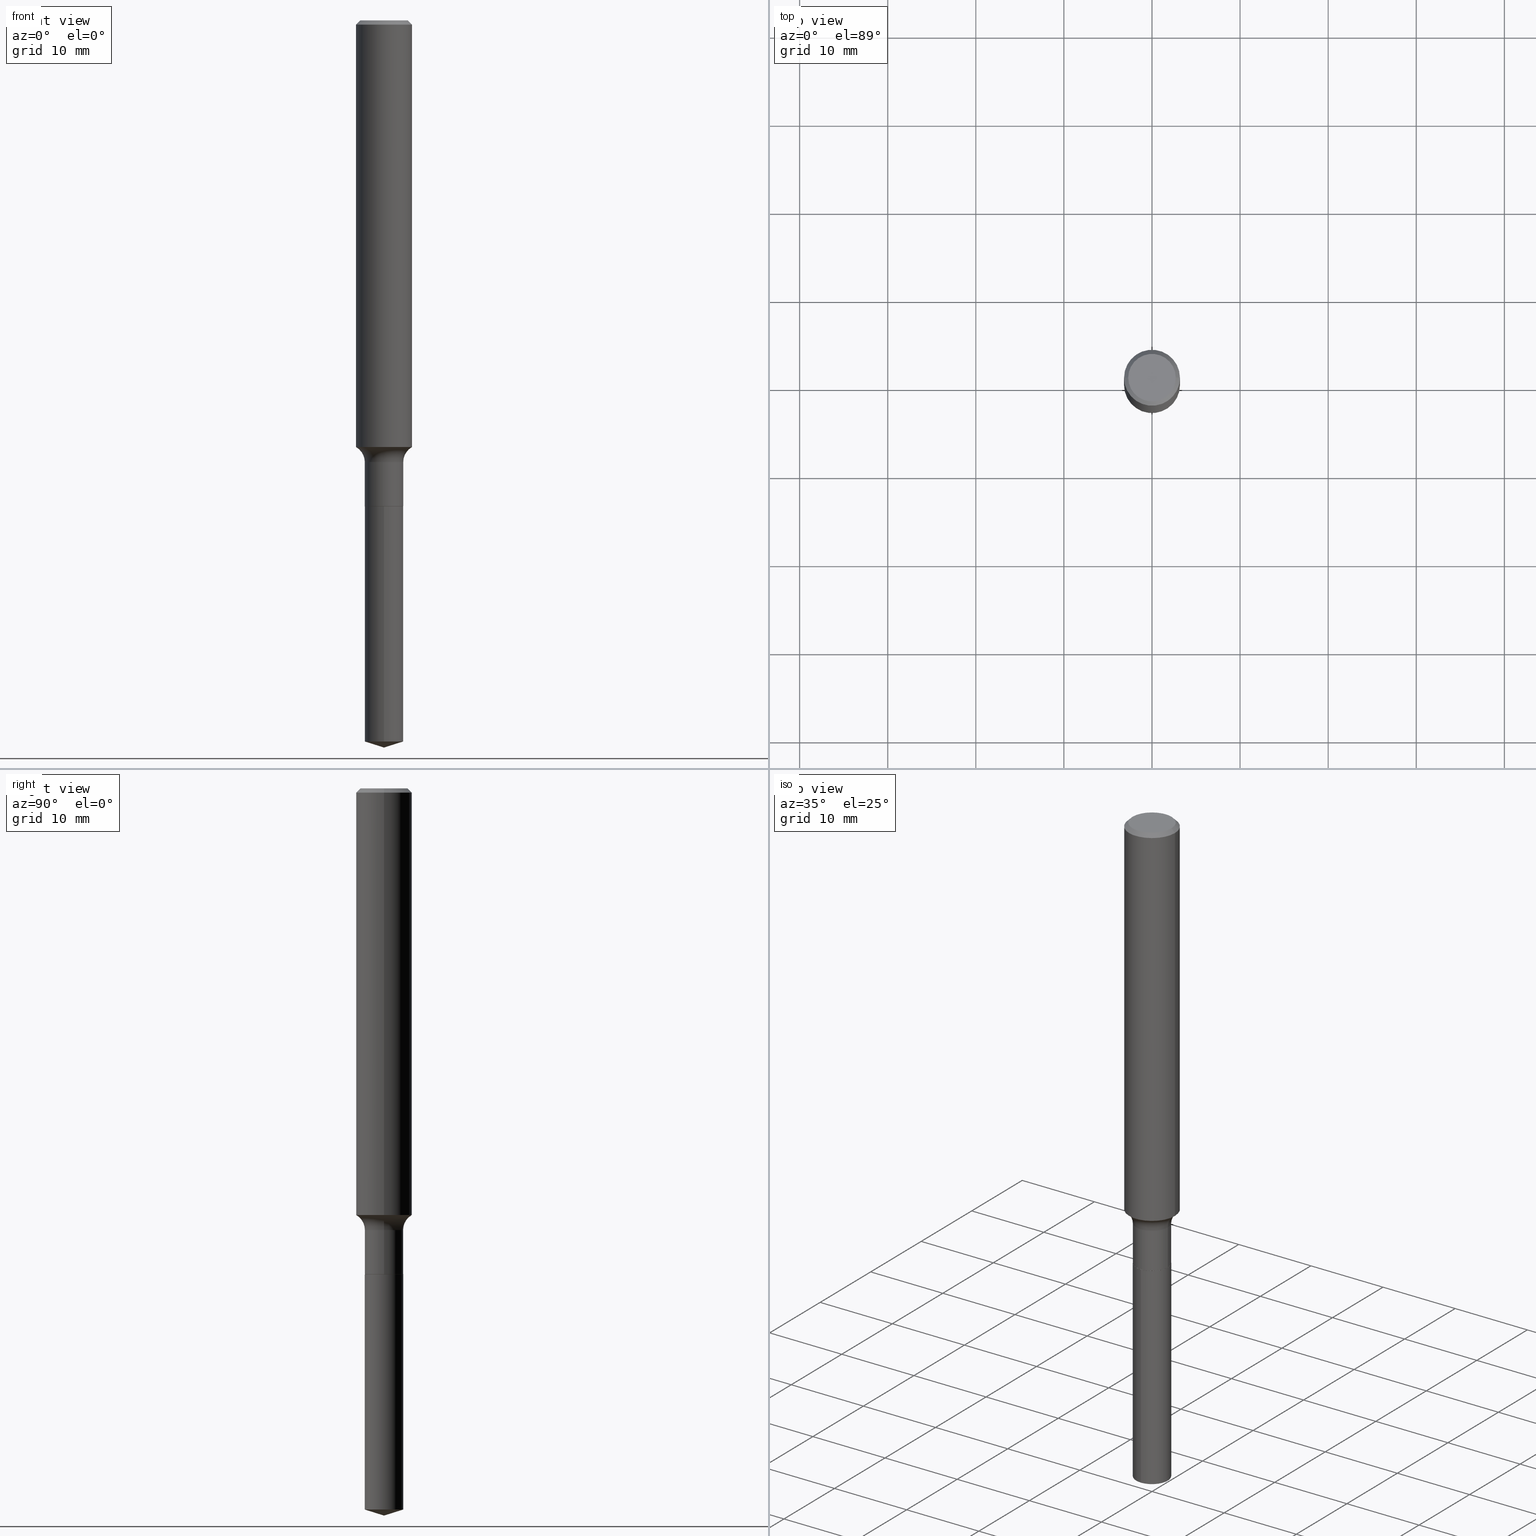
[diagram: canonical four-view strip — front | top / right | iso, engineering-drawing reading convention]
A machine part, canonical four-view strip (front | top / right | iso — engineering-drawing reading convention). The complete STEP part file that produces these views, byte-faithful:
ISO-10303-21;
HEADER;
FILE_DESCRIPTION (( 'STEP AP203' ),
    '1' );
FILE_NAME ('51588.STEP',
    '2024-04-19T13:04:25',
    ( '' ),
    ( '' ),
    'SwSTEP 2.0',
    'SolidWorks 2023',
    '' );
FILE_SCHEMA (( 'CONFIG_CONTROL_DESIGN' ));
ENDSEC;

DATA;
#1 = ORIENTED_EDGE ( 'NONE', *, *, #270, .F. ) ;
#2 = APPROVAL_ROLE ( '' ) ;
#3 = VERTEX_POINT ( 'NONE', #417 ) ;
#4 = EDGE_CURVE ( 'NONE', #64, #483, #346, .T. ) ;
#5 = PERSON_AND_ORGANIZATION ( #153, #143 ) ;
#6 = DIRECTION ( 'NONE',  ( -1.000000000000000000, 6.982962677686265922E-15, -4.876176775795935793E-29 ) ) ;
#7 = APPROVAL_ROLE ( '' ) ;
#8 = CARTESIAN_POINT ( 'NONE',  ( 5.311313700153497401E-29, -7.583148319833427758E-15, -2.171899999999999942 ) ) ;
#9 = COORDINATED_UNIVERSAL_TIME_OFFSET ( 5, 0, .BEHIND. ) ;
#10 = CARTESIAN_POINT ( 'NONE',  ( 0.1250000000000001388, -8.728703347107843249E-16, 6.095220969744926748E-30 ) ) ;
#11 = CC_DESIGN_PERSON_AND_ORGANIZATION_ASSIGNMENT ( #418, #311, ( #396 ) ) ;
#12 = CARTESIAN_POINT ( 'NONE',  ( 0.08595000000000001250, -8.181588221311139692E-15, -2.171399999999999775 ) ) ;
#13 = DIRECTION ( 'NONE',  ( -2.445468806185136597E-29, 3.491481338843145583E-15, 1.000000000000000000 ) ) ;
#14 = AXIS2_PLACEMENT_3D ( 'NONE', #348, #205, #425 ) ;
#15 =( GEOMETRIC_REPRESENTATION_CONTEXT ( 3 ) GLOBAL_UNCERTAINTY_ASSIGNED_CONTEXT ( ( #113 ) ) GLOBAL_UNIT_ASSIGNED_CONTEXT ( ( #229, #302, #81 ) ) REPRESENTATION_CONTEXT ( 'NONE', 'WORKASPACE' ) );
#16 = DIRECTION ( 'NONE',  ( -2.445468806185136597E-29, 3.491481338843145583E-15, 1.000000000000000000 ) ) ;
#17 = FACE_OUTER_BOUND ( 'NONE', #361, .T. ) ;
#18 = ORIENTED_EDGE ( 'NONE', *, *, #273, .T. ) ;
#19 = DIRECTION ( 'NONE',  ( 1.000000000000000000, -6.982962677686270655E-15, 0.000000000000000000 ) ) ;
#20 = EDGE_LOOP ( 'NONE', ( #338, #232, #370, #146 ) ) ;
#21 = AXIS2_PLACEMENT_3D ( 'NONE', #355, #357, #350 ) ;
#22 = LOCAL_TIME ( 9, 4, 25.00000000000000000, #67 ) ;
#23 = FACE_OUTER_BOUND ( 'NONE', #299, .T. ) ;
#24 = ORIENTED_EDGE ( 'NONE', *, *, #234, .F. ) ;
#25 = EDGE_CURVE ( 'NONE', #410, #254, #310, .T. ) ;
#26 = DIRECTION ( 'NONE',  ( 1.000000000000000000, -6.982962677686266711E-15, 0.000000000000000000 ) ) ;
#27 = ORIENTED_EDGE ( 'NONE', *, *, #303, .F. ) ;
#28 = DIRECTION ( 'NONE',  ( -2.445468806185136597E-29, 3.491481338843145583E-15, 1.000000000000000000 ) ) ;
#29 = ORIENTED_EDGE ( 'NONE', *, *, #25, .F. ) ;
#30 = VECTOR ( 'NONE', #111, 39.37007874015748143 ) ;
#31 = AXIS2_PLACEMENT_3D ( 'NONE', #100, #246, #362 ) ;
#32 = VECTOR ( 'NONE', #190, 39.37007874015748143 ) ;
#33 = CARTESIAN_POINT ( 'NONE',  ( -6.001856421470813725E-16, -0.08595000000000757590, -2.171899999999999498 ) ) ;
#34 = EDGE_CURVE ( 'NONE', #95, #3, #189, .T. ) ;
#35 = CARTESIAN_POINT ( 'NONE',  ( 6.107114813858590523E-16, 0.08594999999999240747, -2.171899999999999942 ) ) ;
#36 = ORIENTED_EDGE ( 'NONE', *, *, #270, .T. ) ;
#37 = EDGE_LOOP ( 'NONE', ( #24, #212 ) ) ;
#38 = SECURITY_CLASSIFICATION ( '', '', #384 ) ;
#39 = PERSON_AND_ORGANIZATION_ROLE ( 'design_supplier' ) ;
#40 = VERTEX_POINT ( 'NONE', #74 ) ;
#41 = APPROVAL_STATUS ( 'not_yet_approved' ) ;
#42 = DIRECTION ( 'NONE',  ( 2.438088387897960049E-29, -3.491481338843145188E-15, -1.000000000000000000 ) ) ;
#43 = CARTESIAN_POINT ( 'NONE',  ( -0.08544999999999998430, -6.973340324952309186E-15, -2.171899999999999498 ) ) ;
#44 = CALENDAR_DATE ( 2024, 19, 4 ) ;
#45 = AXIS2_PLACEMENT_3D ( 'NONE', #58, #471, #128 ) ;
#46 = DIRECTION ( 'NONE',  ( 1.000000000000000000, -6.982962677686267499E-15, 4.883557194083112340E-29 ) ) ;
#47 = EDGE_CURVE ( 'NONE', #254, #415, #446, .T. ) ;
#48 = DIRECTION ( 'NONE',  ( -1.000000000000000000, 6.982962677686266711E-15, 0.000000000000000000 ) ) ;
#49 = CARTESIAN_POINT ( 'NONE',  ( 4.585254011597165626E-31, -6.546527510330947764E-17, -0.01875000000000014155 ) ) ;
#50 = ADVANCED_FACE ( 'NONE', ( #105 ), #69, .T. ) ;
#51 = FACE_OUTER_BOUND ( 'NONE', #308, .T. ) ;
#52 = CONICAL_SURFACE ( 'NONE', #193, 0.08544999999999998430, 0.7853981633978409649 ) ;
#53 = AXIS2_PLACEMENT_3D ( 'NONE', #231, #68, #147 ) ;
#54 = VERTEX_POINT ( 'NONE', #33 ) ;
#55 = FACE_OUTER_BOUND ( 'NONE', #20, .T. ) ;
#56 = EDGE_CURVE ( 'NONE', #3, #415, #175, .T. ) ;
#57 = EDGE_LOOP ( 'NONE', ( #252, #103 ) ) ;
#58 = CARTESIAN_POINT ( 'NONE',  ( 5.311313700153497401E-29, -7.583148319833427758E-15, -2.171899999999999942 ) ) ;
#59 = EDGE_LOOP ( 'NONE', ( #481, #218, #434, #265 ) ) ;
#60 = DIRECTION ( 'NONE',  ( 1.000000000000000000, -6.982962677686270655E-15, 0.000000000000000000 ) ) ;
#61 = EDGE_LOOP ( 'NONE', ( #340, #196, #250, #154 ) ) ;
#62 = CIRCLE ( 'NONE', #21, 0.08544999999999998430 ) ;
#63 = DIRECTION ( 'NONE',  ( 1.000000000000000000, -6.982962677686266711E-15, 4.877714189860772023E-29 ) ) ;
#64 = VERTEX_POINT ( 'NONE', #281 ) ;
#65 = CARTESIAN_POINT ( 'NONE',  ( 5.311313700153497401E-29, -7.583148319833427758E-15, -2.171899999999999942 ) ) ;
#66 = CARTESIAN_POINT ( 'NONE',  ( -0.08595000000000001250, 6.107114813858061986E-16, -4.227824710074092290E-30 ) ) ;
#67 = COORDINATED_UNIVERSAL_TIME_OFFSET ( 5, 0, .BEHIND. ) ;
#68 = DIRECTION ( 'NONE',  ( -2.438088387897960049E-29, 3.491481338843145188E-15, 1.000000000000000000 ) ) ;
#69 = CYLINDRICAL_SURFACE ( 'NONE', #476, 0.08595000000000001250 ) ;
#70 = ADVANCED_FACE ( 'NONE', ( #427 ), #201, .F. ) ;
#71 = CIRCLE ( 'NONE', #210, 0.1062499999999999972 ) ;
#72 = AXIS2_PLACEMENT_3D ( 'NONE', #470, #126, #285 ) ;
#73 = CARTESIAN_POINT ( 'NONE',  ( -0.1250000000000003331, -5.768753835338669634E-15, -1.906621175653907319 ) ) ;
#74 = CARTESIAN_POINT ( 'NONE',  ( -6.001856421470559317E-16, -0.08595000000001129514, -3.222900069095851805 ) ) ;
#75 = CC_DESIGN_PERSON_AND_ORGANIZATION_ASSIGNMENT ( #5, #85, ( #295 ) ) ;
#76 = CARTESIAN_POINT ( 'NONE',  ( 6.107114813858851833E-16, 0.08594999999998877149, -3.222900069095853137 ) ) ;
#77 = ORIENTED_EDGE ( 'NONE', *, *, #4, .F. ) ;
#78 = LINE ( 'NONE', #184, #32 ) ;
#79 = ORIENTED_EDGE ( 'NONE', *, *, #460, .F. ) ;
#80 = AXIS2_PLACEMENT_3D ( 'NONE', #360, #180, #439 ) ;
#81 =( NAMED_UNIT ( * ) SI_UNIT ( $, .STERADIAN. ) SOLID_ANGLE_UNIT ( ) );
#82 = CARTESIAN_POINT ( 'NONE',  ( 0.1250000000000000000, -9.383356098140928781E-16, -0.01875000000000014155 ) ) ;
#83 = DATE_AND_TIME ( #456, #421 ) ;
#84 = CARTESIAN_POINT ( 'NONE',  ( 5.310090965750405721E-29, -7.581402579164005466E-15, -2.171399999999999775 ) ) ;
#85 = PERSON_AND_ORGANIZATION_ROLE ( 'creator' ) ;
#86 = DIRECTION ( 'NONE',  ( -2.445468806185136597E-29, 3.491481338843145583E-15, 1.000000000000000000 ) ) ;
#87 = CALENDAR_DATE ( 2024, 19, 4 ) ;
#88 = AXIS2_PLACEMENT_3D ( 'NONE', #381, #42, #6 ) ;
#89 = CARTESIAN_POINT ( 'NONE',  ( 0.1250000000000003331, -7.529802589749582149E-15, -1.906621175653907319 ) ) ;
#90 = DATE_TIME_ROLE ( 'classification_date' ) ;
#91 = DIRECTION ( 'NONE',  ( 0.7071067811865454633, -7.319954787623248157E-15, -0.7071067811865495711 ) ) ;
#92 = CARTESIAN_POINT ( 'NONE',  ( -8.832623085328410100E-28, 1.261187315385179839E-13, 36.12007874015748143 ) ) ;
#93 = CARTESIAN_POINT ( 'NONE',  ( 5.311313700153497401E-29, -7.583148319833426180E-15, -2.171899999999999498 ) ) ;
#94 = AXIS2_PLACEMENT_3D ( 'NONE', #389, #235, #48 ) ;
#95 = VERTEX_POINT ( 'NONE', #161 ) ;
#96 = CARTESIAN_POINT ( 'NONE',  ( 0.000000000000000000, 0.000000000000000000, 0.000000000000000000 ) ) ;
#97 = ORIENTED_EDGE ( 'NONE', *, *, #378, .T. ) ;
#98 = CARTESIAN_POINT ( 'NONE',  ( -0.1250000000000000000, -2.473020345370925196E-15, -0.01875000000000014155 ) ) ;
#99 = VERTEX_POINT ( 'NONE', #89 ) ;
#100 = CARTESIAN_POINT ( 'NONE',  ( 7.881383700020633069E-29, -1.125286426538225716E-14, -3.222900069095852249 ) ) ;
#101 = ORIENTED_EDGE ( 'NONE', *, *, #234, .T. ) ;
#102 = CARTESIAN_POINT ( 'NONE',  ( 0.08594999999999998475, -7.493068101291271863E-15, -1.974199999999999955 ) ) ;
#103 = ORIENTED_EDGE ( 'NONE', *, *, #366, .T. ) ;
#104 = FACE_OUTER_BOUND ( 'NONE', #339, .T. ) ;
#105 = FACE_OUTER_BOUND ( 'NONE', #59, .T. ) ;
#106 = CC_DESIGN_PERSON_AND_ORGANIZATION_ASSIGNMENT ( #424, #278, ( #393 ) ) ;
#107 = DIRECTION ( 'NONE',  ( 1.000000000000000000, -6.982962677686259611E-15, 0.000000000000000000 ) ) ;
#108 = CARTESIAN_POINT ( 'NONE',  ( 0.000000000000000000, 0.000000000000000000, 0.000000000000000000 ) ) ;
#109 = AXIS2_PLACEMENT_3D ( 'NONE', #96, #253, #365 ) ;
#110 =( LENGTH_UNIT ( ) NAMED_UNIT ( * ) SI_UNIT ( $, .METRE. ) );
#111 = DIRECTION ( 'NONE',  ( -2.445468806185136877E-29, 3.491481338843145188E-15, 1.000000000000000000 ) ) ;
#112 = FACE_OUTER_BOUND ( 'NONE', #214, .T. ) ;
#113 = UNCERTAINTY_MEASURE_WITH_UNIT (LENGTH_MEASURE( 1.000000000000000082E-05 ), #229, 'distance_accuracy_value', 'NONE');
#114 = EDGE_LOOP ( 'NONE', ( #133, #442, #380, #181 ) ) ;
#115 = CARTESIAN_POINT ( 'NONE',  ( -0.1250000000000001388, 8.881784197001262184E-16, -6.148668862818638533E-30 ) ) ;
#116 = AXIS2_PLACEMENT_3D ( 'NONE', #257, #404, #289 ) ;
#117 = LINE ( 'NONE', #199, #379 ) ;
#118 = DIRECTION ( 'NONE',  ( 0.000000000000000000, 0.000000000000000000, 1.000000000000000000 ) ) ;
#119 = PLANE ( 'NONE',  #88 ) ;
#120 = APPROVAL_DATE_TIME ( #354, #220 ) ;
#121 = LINE ( 'NONE', #165, #202 ) ;
#122 = APPROVAL_DATE_TIME ( #315, #200 ) ;
#123 = VECTOR ( 'NONE', #274, 39.37007874015748143 ) ;
#124 = FACE_OUTER_BOUND ( 'NONE', #343, .T. ) ;
#125 = CONICAL_SURFACE ( 'NONE', #387, 0.08544999999999998430, 0.7853981633978409649 ) ;
#126 = DIRECTION ( 'NONE',  ( -2.445468806185136597E-29, 3.491481338843145583E-15, 1.000000000000000000 ) ) ;
#127 = CC_DESIGN_DATE_AND_TIME_ASSIGNMENT ( #83, #280, ( #295 ) ) ;
#128 = DIRECTION ( 'NONE',  ( -6.982962677686266711E-15, -1.000000000000000000, 3.178415350394722068E-15 ) ) ;
#129 = PRODUCT_DEFINITION_SHAPE ( 'NONE', 'NONE',  #295 ) ;
#130 = DIRECTION ( 'NONE',  ( -2.445468806185136597E-29, 3.491481338843145583E-15, 1.000000000000000000 ) ) ;
#131 = AXIS2_PLACEMENT_3D ( 'NONE', #390, #207, #209 ) ;
#132 = APPROVAL_PERSON_ORGANIZATION ( #198, #200, #7 ) ;
#133 = ORIENTED_EDGE ( 'NONE', *, *, #286, .F. ) ;
#134 = CYLINDRICAL_SURFACE ( 'NONE', #116, 0.08595000000000001250 ) ;
#135 = ORIENTED_EDGE ( 'NONE', *, *, #342, .F. ) ;
#136 = EDGE_CURVE ( 'NONE', #272, #405, #386, .T. ) ;
#137 = CYLINDRICAL_SURFACE ( 'NONE', #109, 0.1250000000000001388 ) ;
#138 = ORIENTED_EDGE ( 'NONE', *, *, #255, .F. ) ;
#139 = APPROVAL_DATE_TIME ( #469, #479 ) ;
#140 = CARTESIAN_POINT ( 'NONE',  ( 4.827844517170696296E-29, -6.892882459144138426E-15, -1.974199999999999955 ) ) ;
#141 = ORIENTED_EDGE ( 'NONE', *, *, #228, .T. ) ;
#142 = AXIS2_PLACEMENT_3D ( 'NONE', #217, #16, #19 ) ;
#143 = ORGANIZATION ( 'UNSPECIFIED', 'UNSPECIFIED', '' ) ;
#144 = ADVANCED_FACE ( 'NONE', ( #124 ), #351, .T. ) ;
#145 = EDGE_CURVE ( 'NONE', #179, #95, #322, .T. ) ;
#146 = ORIENTED_EDGE ( 'NONE', *, *, #444, .F. ) ;
#147 = DIRECTION ( 'NONE',  ( 1.000000000000000000, -6.982962677686265922E-15, 4.876176775795935793E-29 ) ) ;
#148 = ORIENTED_EDGE ( 'NONE', *, *, #303, .T. ) ;
#149 = ADVANCED_FACE ( 'NONE', ( #462 ), #248, .T. ) ;
#150 = ORIENTED_EDGE ( 'NONE', *, *, #383, .T. ) ;
#151 = CIRCLE ( 'NONE', #166, 0.08594999999999998475 ) ;
#152 = CC_DESIGN_APPROVAL ( #479, ( #38 ) ) ;
#153 = PERSON ( 'UNSPECIFIED', 'UNSPECIFIED', 'UNSPECIFIED', ('UNSPECIFIED'), ('UNSPECIFIED'), ('UNSPECIFIED') ) ;
#154 = ORIENTED_EDGE ( 'NONE', *, *, #460, .T. ) ;
#155 = DIRECTION ( 'NONE',  ( 6.776566513254273126E-15, 0.9537169507482310404, 0.3007057995042597409 ) ) ;
#156 = APPLICATION_PROTOCOL_DEFINITION ( 'international standard', 'config_control_design', 1994, #244 ) ;
#157 = DIRECTION ( 'NONE',  ( -2.445468806185136877E-29, 3.491481338843145188E-15, 1.000000000000000000 ) ) ;
#158 = AXIS2_PLACEMENT_3D ( 'NONE', #251, #293, #60 ) ;
#159 = AXIS2_PLACEMENT_3D ( 'NONE', #140, #226, #416 ) ;
#160 = ADVANCED_FACE ( 'NONE', ( #458 ), #119, .F. ) ;
#161 = CARTESIAN_POINT ( 'NONE',  ( -0.08595000000000001250, -6.626431037768265648E-15, -2.171399999999999775 ) ) ;
#162 = CARTESIAN_POINT ( 'NONE',  ( 0.000000000000000000, 0.000000000000000000, 0.000000000000000000 ) ) ;
#163 = DIRECTION ( 'NONE',  ( -2.445356642153314140E-29, 3.491641964120695911E-15, 1.000000000000000000 ) ) ;
#164 = COORDINATED_UNIVERSAL_TIME_OFFSET ( 5, 0, .BEHIND. ) ;
#165 = CARTESIAN_POINT ( 'NONE',  ( 0.1250000000000000000, -9.230275248247509846E-16, -0.01875000000000014155 ) ) ;
#166 = AXIS2_PLACEMENT_3D ( 'NONE', #8, #277, #422 ) ;
#167 = SHAPE_DEFINITION_REPRESENTATION ( #129, #291 ) ;
#168 = LOCAL_TIME ( 9, 4, 25.00000000000000000, #164 ) ;
#169 = DIRECTION ( 'NONE',  ( 1.000000000000000000, -6.982962677686266711E-15, 0.000000000000000000 ) ) ;
#170 = CALENDAR_DATE ( 2024, 19, 4 ) ;
#171 = DIRECTION ( 'NONE',  ( -6.982962677686266711E-15, -1.000000000000000000, 3.491481338843145583E-15 ) ) ;
#172 = PRODUCT_RELATED_PRODUCT_CATEGORY ( 'detail', '', ( #396 ) ) ;
#173 = CARTESIAN_POINT ( 'NONE',  ( 6.107114813858848875E-16, 0.08594999999999240747, -2.171899999999999942 ) ) ;
#174 = ORIENTED_EDGE ( 'NONE', *, *, #56, .T. ) ;
#175 = CIRCLE ( 'NONE', #305, 0.08594999999999998475 ) ;
#176 = CYLINDRICAL_SURFACE ( 'NONE', #80, 0.08594999999999998475 ) ;
#177 = AXIS2_PLACEMENT_3D ( 'NONE', #363, #480, #324 ) ;
#178 = AXIS2_PLACEMENT_3D ( 'NONE', #409, #28, #107 ) ;
#179 = VERTEX_POINT ( 'NONE', #43 ) ;
#180 = DIRECTION ( 'NONE',  ( -2.445356642153314140E-29, 3.491641964120695911E-15, 1.000000000000000000 ) ) ;
#181 = ORIENTED_EDGE ( 'NONE', *, *, #273, .F. ) ;
#182 = DIRECTION ( 'NONE',  ( -6.982962677686266711E-15, -1.000000000000000000, 3.500519750498609374E-15 ) ) ;
#183 = ORIENTED_EDGE ( 'NONE', *, *, #454, .F. ) ;
#184 = CARTESIAN_POINT ( 'NONE',  ( -0.1250000000000000000, 8.074050596074738982E-16, -0.01875000000000014155 ) ) ;
#185 = ORIENTED_EDGE ( 'NONE', *, *, #454, .T. ) ;
#186 = CIRCLE ( 'NONE', #457, 0.1250000000000000000 ) ;
#187 = CC_DESIGN_APPROVAL ( #200, ( #393 ) ) ;
#188 = FACE_OUTER_BOUND ( 'NONE', #37, .T. ) ;
#189 = LINE ( 'NONE', #66, #30 ) ;
#190 = DIRECTION ( 'NONE',  ( -0.7071067811865454633, 2.468850131082235367E-15, -0.7071067811865495711 ) ) ;
#191 = ORIENTED_EDGE ( 'NONE', *, *, #264, .T. ) ;
#192 = ORIENTED_EDGE ( 'NONE', *, *, #47, .F. ) ;
#193 = AXIS2_PLACEMENT_3D ( 'NONE', #93, #473, #332 ) ;
#194 = AXIS2_PLACEMENT_3D ( 'NONE', #326, #219, #249 ) ;
#195 = APPROVAL_STATUS ( 'not_yet_approved' ) ;
#196 = ORIENTED_EDGE ( 'NONE', *, *, #321, .F. ) ;
#197 = DIRECTION ( 'NONE',  ( -2.445468806185136597E-29, 3.491481338843145583E-15, 1.000000000000000000 ) ) ;
#198 = PERSON_AND_ORGANIZATION ( #153, #143 ) ;
#199 = CARTESIAN_POINT ( 'NONE',  ( -6.001856421470813725E-16, -0.08595000000000757590, -2.171899999999999498 ) ) ;
#200 = APPROVAL ( #349, 'UNSPECIFIED' ) ;
#201 = TOROIDAL_SURFACE ( 'NONE', #225, 0.1639499999999999569, 0.07800000000000002764 ) ;
#202 = VECTOR ( 'NONE', #91, 39.37007874015748143 ) ;
#203 = CC_DESIGN_SECURITY_CLASSIFICATION ( #38, ( #393 ) ) ;
#204 = PERSON_AND_ORGANIZATION ( #153, #143 ) ;
#205 = DIRECTION ( 'NONE',  ( 2.445468806185136597E-29, -3.491481338843145583E-15, -1.000000000000000000 ) ) ;
#206 = EDGE_CURVE ( 'NONE', #99, #290, #279, .T. ) ;
#207 = DIRECTION ( 'NONE',  ( -2.445468806185136597E-29, 3.491481338843145583E-15, 1.000000000000000000 ) ) ;
#208 = CC_DESIGN_PERSON_AND_ORGANIZATION_ASSIGNMENT ( #239, #39, ( #393 ) ) ;
#209 = DIRECTION ( 'NONE',  ( 1.000000000000000000, -6.982962677686267499E-15, 0.000000000000000000 ) ) ;
#210 = AXIS2_PLACEMENT_3D ( 'NONE', #292, #433, #63 ) ;
#211 = CYLINDRICAL_SURFACE ( 'NONE', #323, 0.1250000000000001388 ) ;
#212 = ORIENTED_EDGE ( 'NONE', *, *, #215, .F. ) ;
#213 = DIRECTION ( 'NONE',  ( 1.000000000000000000, -6.982962677686266711E-15, 4.876176775795935793E-29 ) ) ;
#214 = EDGE_LOOP ( 'NONE', ( #333, #97 ) ) ;
#215 = EDGE_CURVE ( 'NONE', #179, #410, #491, .T. ) ;
#216 = FACE_OUTER_BOUND ( 'NONE', #395, .T. ) ;
#217 = CARTESIAN_POINT ( 'NONE',  ( 4.662582610273662110E-29, -6.656932255038797233E-15, -1.906621175653907319 ) ) ;
#218 = ORIENTED_EDGE ( 'NONE', *, *, #444, .T. ) ;
#219 = DIRECTION ( 'NONE',  ( -2.445356642153314140E-29, 3.491641964120695911E-15, 1.000000000000000000 ) ) ;
#220 = APPROVAL ( #41, 'UNSPECIFIED' ) ;
#221 = DIRECTION ( 'NONE',  ( 2.445356642153313579E-29, -3.491641964120695911E-15, -1.000000000000000000 ) ) ;
#222 = ORIENTED_EDGE ( 'NONE', *, *, #467, .T. ) ;
#223 = CLOSED_SHELL ( 'NONE', ( #423, #413, #369, #314, #438 ) ) ;
#224 = DIRECTION ( 'NONE',  ( 1.000000000000000000, -6.982962677686265922E-15, 4.876176775795935793E-29 ) ) ;
#225 = AXIS2_PLACEMENT_3D ( 'NONE', #316, #197, #46 ) ;
#226 = DIRECTION ( 'NONE',  ( -2.445468806185136597E-29, 3.491481338843145583E-15, 1.000000000000000000 ) ) ;
#227 = DIRECTION ( 'NONE',  ( -2.445468806185136597E-29, 3.491481338843145583E-15, 1.000000000000000000 ) ) ;
#228 = EDGE_CURVE ( 'NONE', #40, #54, #117, .T. ) ;
#229 =( CONVERSION_BASED_UNIT ( 'INCH', #261 ) LENGTH_UNIT ( ) NAMED_UNIT ( #296 ) );
#230 = EDGE_LOOP ( 'NONE', ( #300, #450, #260 ) ) ;
#231 = CARTESIAN_POINT ( 'NONE',  ( 1.015999913565856614E-28, -6.395548061535980730E-16, -2.171899999999999942 ) ) ;
#232 = ORIENTED_EDGE ( 'NONE', *, *, #215, .T. ) ;
#233 = VECTOR ( 'NONE', #430, 39.37007874015748143 ) ;
#234 = EDGE_CURVE ( 'NONE', #410, #179, #62, .T. ) ;
#235 = DIRECTION ( 'NONE',  ( 2.445468806185136597E-29, -3.491481338843145583E-15, -1.000000000000000000 ) ) ;
#236 = EDGE_CURVE ( 'NONE', #54, #329, #151, .T. ) ;
#237 = APPLICATION_PROTOCOL_DEFINITION ( 'international standard', 'config_control_design', 1994, #487 ) ;
#238 = LINE ( 'NONE', #382, #344 ) ;
#239 = PERSON_AND_ORGANIZATION ( #153, #143 ) ;
#240 = DIRECTION ( 'NONE',  ( -6.659769872151647866E-15, -0.9537169507482290420, 0.3007057995042664023 ) ) ;
#241 = CIRCLE ( 'NONE', #159, 0.08594999999999998475 ) ;
#242 = DATE_AND_TIME ( #87, #298 ) ;
#243 = DIRECTION ( 'NONE',  ( -2.445468806185136597E-29, 3.491481338843145583E-15, 1.000000000000000000 ) ) ;
#244 = APPLICATION_CONTEXT ( 'configuration controlled 3d designs of mechanical parts and assemblies' ) ;
#245 = CARTESIAN_POINT ( 'NONE',  ( -0.1062499999999999972, 7.746724220558198188E-16, -2.602374448188655674E-17 ) ) ;
#246 = DIRECTION ( 'NONE',  ( -2.445356642153314140E-29, 3.491641964120695911E-15, 1.000000000000000000 ) ) ;
#247 = VECTOR ( 'NONE', #155, 39.37007874015748854 ) ;
#248 = CONICAL_SURFACE ( 'NONE', #14, 0.1250000000000000000, 0.7853981633974453924 ) ;
#249 = DIRECTION ( 'NONE',  ( -6.982962677686266711E-15, -1.000000000000000000, 3.500519750498609374E-15 ) ) ;
#250 = ORIENTED_EDGE ( 'NONE', *, *, #356, .T. ) ;
#251 = CARTESIAN_POINT ( 'NONE',  ( 4.662582610273662110E-29, -6.656932255038797233E-15, -1.906621175653907319 ) ) ;
#252 = ORIENTED_EDGE ( 'NONE', *, *, #136, .T. ) ;
#253 = DIRECTION ( 'NONE',  ( -2.445468806185136597E-29, 3.491481338843145583E-15, 1.000000000000000000 ) ) ;
#254 = VERTEX_POINT ( 'NONE', #12 ) ;
#255 = EDGE_CURVE ( 'NONE', #254, #95, #468, .T. ) ;
#256 = AXIS2_PLACEMENT_3D ( 'NONE', #49, #13, #169 ) ;
#257 = CARTESIAN_POINT ( 'NONE',  ( 0.000000000000000000, 0.000000000000000000, 0.000000000000000000 ) ) ;
#258 = CC_DESIGN_APPROVAL ( #220, ( #295 ) ) ;
#259 = ORIENTED_EDGE ( 'NONE', *, *, #378, .F. ) ;
#260 = ORIENTED_EDGE ( 'NONE', *, *, #267, .F. ) ;
#261 = LENGTH_MEASURE_WITH_UNIT ( LENGTH_MEASURE( 0.02539999999999999897 ), #110 );
#262 = DIRECTION ( 'NONE',  ( -2.445468806185136877E-29, 3.491481338843145188E-15, 1.000000000000000000 ) ) ;
#263 = CYLINDRICAL_SURFACE ( 'NONE', #352, 0.08594999999999998475 ) ;
#264 = EDGE_CURVE ( 'NONE', #64, #40, #238, .T. ) ;
#265 = ORIENTED_EDGE ( 'NONE', *, *, #56, .F. ) ;
#266 = CONICAL_SURFACE ( 'NONE', #194, 124.8659371009184582, 1.265363707695899453 ) ;
#267 = EDGE_CURVE ( 'NONE', #40, #483, #428, .T. ) ;
#268 = FACE_OUTER_BOUND ( 'NONE', #401, .T. ) ;
#269 = CARTESIAN_POINT ( 'NONE',  ( 0.08595000000000001250, -6.001856421471346206E-16, 4.191073938796607240E-30 ) ) ;
#270 = EDGE_CURVE ( 'NONE', #405, #290, #121, .T. ) ;
#271 = LINE ( 'NONE', #35, #359 ) ;
#272 = VERTEX_POINT ( 'NONE', #245 ) ;
#273 = EDGE_CURVE ( 'NONE', #392, #290, #331, .T. ) ;
#274 = DIRECTION ( 'NONE',  ( -2.445468806185136877E-29, 3.491481338843145188E-15, 1.000000000000000000 ) ) ;
#275 = AXIS2_PLACEMENT_3D ( 'NONE', #353, #243, #466 ) ;
#276 = CC_DESIGN_DATE_AND_TIME_ASSIGNMENT ( #242, #90, ( #38 ) ) ;
#277 = DIRECTION ( 'NONE',  ( -2.445356642153314140E-29, 3.491641964120695911E-15, 1.000000000000000000 ) ) ;
#278 = PERSON_AND_ORGANIZATION_ROLE ( 'creator' ) ;
#279 = LINE ( 'NONE', #10, #297 ) ;
#280 = DATE_TIME_ROLE ( 'creation_date' ) ;
#281 = CARTESIAN_POINT ( 'NONE',  ( 7.947409086998271654E-29, -1.134783638339226132E-14, -3.250000000000000000 ) ) ;
#282 = AXIS2_PLACEMENT_3D ( 'NONE', #84, #86, #420 ) ;
#283 = MECHANICAL_CONTEXT ( 'NONE', #244, 'mechanical' ) ;
#284 = CARTESIAN_POINT ( 'NONE',  ( -0.08544999999999998430, -6.975989552126420387E-15, -2.171899999999999498 ) ) ;
#285 = DIRECTION ( 'NONE',  ( 1.000000000000000000, -6.982962677686267499E-15, 4.883557194083112340E-29 ) ) ;
#286 = EDGE_CURVE ( 'NONE', #452, #392, #453, .T. ) ;
#287 = ORIENTED_EDGE ( 'NONE', *, *, #206, .F. ) ;
#288 = AXIS2_PLACEMENT_3D ( 'NONE', #328, #171, #397 ) ;
#289 = DIRECTION ( 'NONE',  ( 1.000000000000000000, -6.982962677686265922E-15, 4.876176775795935793E-29 ) ) ;
#290 = VERTEX_POINT ( 'NONE', #82 ) ;
#291 = ADVANCED_BREP_SHAPE_REPRESENTATION ( '51588', ( #461, #301, #364 ), #15 ) ;
#292 = CARTESIAN_POINT ( 'NONE',  ( 6.364025535057318316E-46, -9.086141822531067035E-32, -2.602374448188125350E-17 ) ) ;
#293 = DIRECTION ( 'NONE',  ( -2.445468806185136597E-29, 3.491481338843145583E-15, 1.000000000000000000 ) ) ;
#294 = EDGE_LOOP ( 'NONE', ( #440, #36, #150, #472 ) ) ;
#295 = PRODUCT_DEFINITION ( 'UNKNOWN', '', #393, #376 ) ;
#296 = DIMENSIONAL_EXPONENTS ( 1.000000000000000000, 0.000000000000000000, 0.000000000000000000, 0.000000000000000000, 0.000000000000000000, 0.000000000000000000, 0.000000000000000000 ) ;
#297 = VECTOR ( 'NONE', #157, 39.37007874015748143 ) ;
#298 = LOCAL_TIME ( 9, 4, 25.00000000000000000, #429 ) ;
#299 = EDGE_LOOP ( 'NONE', ( #135, #306, #174, #373 ) ) ;
#300 = ORIENTED_EDGE ( 'NONE', *, *, #264, .F. ) ;
#301 = MANIFOLD_SOLID_BREP ( 'Body-Move/Copy2[2]', #455 ) ;
#302 =( NAMED_UNIT ( * ) PLANE_ANGLE_UNIT ( ) SI_UNIT ( $, .RADIAN. ) );
#303 = EDGE_CURVE ( 'NONE', #483, #40, #313, .T. ) ;
#304 = DIRECTION ( 'NONE',  ( 0.7071067811868251285, -2.468850131085164802E-15, 0.7071067811862699060 ) ) ;
#305 = AXIS2_PLACEMENT_3D ( 'NONE', #488, #227, #375 ) ;
#306 = ORIENTED_EDGE ( 'NONE', *, *, #330, .T. ) ;
#307 = CIRCLE ( 'NONE', #142, 0.1250000000000002776 ) ;
#308 = EDGE_LOOP ( 'NONE', ( #183, #148, #141, #259 ) ) ;
#309 = DIRECTION ( 'NONE',  ( 1.000000000000000000, 0.000000000000000000, 0.000000000000000000 ) ) ;
#310 = LINE ( 'NONE', #407, #465 ) ;
#311 = PERSON_AND_ORGANIZATION_ROLE ( 'design_owner' ) ;
#312 = VECTOR ( 'NONE', #262, 39.37007874015748143 ) ;
#313 = CIRCLE ( 'NONE', #31, 0.08594999999999998475 ) ;
#314 = ADVANCED_FACE ( 'NONE', ( #51 ), #176, .T. ) ;
#315 = DATE_AND_TIME ( #320, #168 ) ;
#316 = CARTESIAN_POINT ( 'NONE',  ( 4.827844517170696296E-29, -6.892882459144138426E-15, -1.974199999999999955 ) ) ;
#317 = PERSON_AND_ORGANIZATION ( #153, #143 ) ;
#318 = DIRECTION ( 'NONE',  ( -2.445356642153314420E-29, 3.491641964120695911E-15, 1.000000000000000000 ) ) ;
#319 = ADVANCED_FACE ( 'NONE', ( #216 ), #211, .T. ) ;
#320 = CALENDAR_DATE ( 2024, 19, 4 ) ;
#321 = EDGE_CURVE ( 'NONE', #99, #452, #358, .T. ) ;
#322 = LINE ( 'NONE', #284, #233 ) ;
#323 = AXIS2_PLACEMENT_3D ( 'NONE', #394, #400, #213 ) ;
#324 = DIRECTION ( 'NONE',  ( -1.000000000000000000, 7.105427357601008170E-15, 0.000000000000000000 ) ) ;
#325 = ADVANCED_FACE ( 'NONE', ( #17 ), #134, .T. ) ;
#326 = CARTESIAN_POINT ( 'NONE',  ( -8.832623085328410100E-28, 1.261187315385179839E-13, 36.12007874015748143 ) ) ;
#327 = ORIENTED_EDGE ( 'NONE', *, *, #136, .F. ) ;
#328 = CARTESIAN_POINT ( 'NONE',  ( 0.1639499999999999569, -8.037739190150801487E-15, -1.974199999999999955 ) ) ;
#329 = VERTEX_POINT ( 'NONE', #173 ) ;
#330 = EDGE_CURVE ( 'NONE', #452, #3, #402, .T. ) ;
#331 = CIRCLE ( 'NONE', #256, 0.1250000000000000000 ) ;
#332 = DIRECTION ( 'NONE',  ( 1.000000000000000000, -6.982962677686267499E-15, 0.000000000000000000 ) ) ;
#333 = ORIENTED_EDGE ( 'NONE', *, *, #236, .T. ) ;
#334 = CC_DESIGN_PERSON_AND_ORGANIZATION_ASSIGNMENT ( #204, #426, ( #38 ) ) ;
#335 = CARTESIAN_POINT ( 'NONE',  ( 0.08544999999999998430, -8.179842480641717399E-15, -2.171899999999999498 ) ) ;
#336 = ORIENTED_EDGE ( 'NONE', *, *, #383, .F. ) ;
#337 = CARTESIAN_POINT ( 'NONE',  ( 5.311313700153497401E-29, -7.583148319833426180E-15, -2.171899999999999498 ) ) ;
#338 = ORIENTED_EDGE ( 'NONE', *, *, #145, .F. ) ;
#339 = EDGE_LOOP ( 'NONE', ( #377, #185, #368, #478 ) ) ;
#340 = ORIENTED_EDGE ( 'NONE', *, *, #330, .F. ) ;
#341 = ORIENTED_EDGE ( 'NONE', *, *, #255, .T. ) ;
#342 = EDGE_CURVE ( 'NONE', #452, #99, #307, .T. ) ;
#343 = EDGE_LOOP ( 'NONE', ( #1, #327, #222, #18 ) ) ;
#344 = VECTOR ( 'NONE', #240, 39.37007874015748143 ) ;
#345 = CONICAL_SURFACE ( 'NONE', #449, 124.8659371009184582, 1.265363707695899453 ) ;
#346 = LINE ( 'NONE', #490, #247 ) ;
#347 = APPROVAL_ROLE ( '' ) ;
#348 = CARTESIAN_POINT ( 'NONE',  ( 4.585254011597165626E-31, -6.546527510330947764E-17, -0.01875000000000014155 ) ) ;
#349 = APPROVAL_STATUS ( 'not_yet_approved' ) ;
#350 = DIRECTION ( 'NONE',  ( 1.000000000000000000, -6.982962677686267499E-15, 0.000000000000000000 ) ) ;
#351 = CONICAL_SURFACE ( 'NONE', #94, 0.1250000000000000000, 0.7853981633974453924 ) ;
#352 = AXIS2_PLACEMENT_3D ( 'NONE', #443, #492, #445 ) ;
#353 = CARTESIAN_POINT ( 'NONE',  ( 6.364025535057318316E-46, -9.086141822531067035E-32, -2.602374448188125350E-17 ) ) ;
#354 = DATE_AND_TIME ( #44, #412 ) ;
#355 = CARTESIAN_POINT ( 'NONE',  ( 5.311313700153497401E-29, -7.583148319833426180E-15, -2.171899999999999498 ) ) ;
#356 = EDGE_CURVE ( 'NONE', #99, #415, #419, .T. ) ;
#357 = DIRECTION ( 'NONE',  ( -2.445468806185136597E-29, 3.491481338843145583E-15, 1.000000000000000000 ) ) ;
#358 = CIRCLE ( 'NONE', #158, 0.1250000000000002776 ) ;
#359 = VECTOR ( 'NONE', #371, 39.37007874015748143 ) ;
#360 = CARTESIAN_POINT ( 'NONE',  ( 5.311313700153497401E-29, -7.583148319833427758E-15, -2.171899999999999942 ) ) ;
#361 = EDGE_LOOP ( 'NONE', ( #341, #398, #79, #192 ) ) ;
#362 = DIRECTION ( 'NONE',  ( -6.982962677686266711E-15, -1.000000000000000000, 6.356830700789444137E-15 ) ) ;
#363 = CARTESIAN_POINT ( 'NONE',  ( -0.1639499999999999569, -5.727947643865453886E-15, -1.974199999999999955 ) ) ;
#364 = AXIS2_PLACEMENT_3D ( 'NONE', #162, #118, #309 ) ;
#365 = DIRECTION ( 'NONE',  ( 1.000000000000000000, -6.982962677686266711E-15, 4.876176775795935793E-29 ) ) ;
#366 = EDGE_CURVE ( 'NONE', #405, #272, #71, .T. ) ;
#367 = CARTESIAN_POINT ( 'NONE',  ( 0.1062499999999999972, -8.259777185439880671E-16, -2.602374448187577153E-17 ) ) ;
#368 = ORIENTED_EDGE ( 'NONE', *, *, #236, .F. ) ;
#369 = ADVANCED_FACE ( 'NONE', ( #441 ), #266, .T. ) ;
#370 = ORIENTED_EDGE ( 'NONE', *, *, #25, .T. ) ;
#371 = DIRECTION ( 'NONE',  ( -2.445356642153314420E-29, 3.491641964120695911E-15, 1.000000000000000000 ) ) ;
#372 = AXIS2_PLACEMENT_3D ( 'NONE', #65, #221, #482 ) ;
#373 = ORIENTED_EDGE ( 'NONE', *, *, #356, .F. ) ;
#374 = ADVANCED_FACE ( 'NONE', ( #55 ), #52, .T. ) ;
#375 = DIRECTION ( 'NONE',  ( 1.000000000000000000, -6.982962677686261977E-15, 0.000000000000000000 ) ) ;
#376 = DESIGN_CONTEXT ( 'detailed design', #487, 'design' ) ;
#377 = ORIENTED_EDGE ( 'NONE', *, *, #267, .T. ) ;
#378 = EDGE_CURVE ( 'NONE', #329, #54, #484, .T. ) ;
#379 = VECTOR ( 'NONE', #318, 39.37007874015748143 ) ;
#380 = ORIENTED_EDGE ( 'NONE', *, *, #206, .T. ) ;
#381 = CARTESIAN_POINT ( 'NONE',  ( 3.182012767528659158E-46, -4.543070911265533518E-32, -1.301187224094062675E-17 ) ) ;
#382 = CARTESIAN_POINT ( 'NONE',  ( 7.947409086998271654E-29, -1.134783638339226289E-14, -3.250000000000000000 ) ) ;
#383 = EDGE_CURVE ( 'NONE', #290, #392, #186, .T. ) ;
#384 = SECURITY_CLASSIFICATION_LEVEL ( 'unclassified' ) ;
#385 = CARTESIAN_POINT ( 'NONE',  ( 7.881383700020633069E-29, -1.125286426538225716E-14, -3.222900069095852249 ) ) ;
#386 = CIRCLE ( 'NONE', #275, 0.1062499999999999972 ) ;
#387 = AXIS2_PLACEMENT_3D ( 'NONE', #337, #406, #451 ) ;
#388 = PERSON_AND_ORGANIZATION ( #153, #143 ) ;
#389 = CARTESIAN_POINT ( 'NONE',  ( 4.585254011597165626E-31, -6.546527510330947764E-17, -0.01875000000000014155 ) ) ;
#390 = CARTESIAN_POINT ( 'NONE',  ( 5.311313700153497401E-29, -7.583148319833426180E-15, -2.171899999999999498 ) ) ;
#391 = DIRECTION ( 'NONE',  ( -2.445356642153314140E-29, 3.491641964120695911E-15, 1.000000000000000000 ) ) ;
#392 = VERTEX_POINT ( 'NONE', #98 ) ;
#393 = PRODUCT_DEFINITION_FORMATION_WITH_SPECIFIED_SOURCE ( 'ANY', '', #396, .NOT_KNOWN. ) ;
#394 = CARTESIAN_POINT ( 'NONE',  ( 0.000000000000000000, 0.000000000000000000, 0.000000000000000000 ) ) ;
#395 = EDGE_LOOP ( 'NONE', ( #447, #437, #336, #287 ) ) ;
#396 = PRODUCT ( '51588', '51588', '', ( #283 ) ) ;
#397 = DIRECTION ( 'NONE',  ( 1.000000000000000000, -6.982962677686268288E-15, 0.000000000000000000 ) ) ;
#398 = ORIENTED_EDGE ( 'NONE', *, *, #34, .T. ) ;
#399 = ADVANCED_FACE ( 'NONE', ( #436 ), #137, .T. ) ;
#400 = DIRECTION ( 'NONE',  ( -2.445468806185136597E-29, 3.491481338843145583E-15, 1.000000000000000000 ) ) ;
#401 = EDGE_LOOP ( 'NONE', ( #101, #486, #138, #29 ) ) ;
#402 = CIRCLE ( 'NONE', #177, 0.07800000000000002764 ) ;
#403 = APPROVAL_PERSON_ORGANIZATION ( #317, #220, #347 ) ;
#404 = DIRECTION ( 'NONE',  ( -2.445468806185136597E-29, 3.491481338843145583E-15, 1.000000000000000000 ) ) ;
#405 = VERTEX_POINT ( 'NONE', #367 ) ;
#406 = DIRECTION ( 'NONE',  ( -2.445468806185136597E-29, 3.491481338843145583E-15, 1.000000000000000000 ) ) ;
#407 = CARTESIAN_POINT ( 'NONE',  ( 0.08544999999999998430, -8.179842480641717399E-15, -2.171899999999999498 ) ) ;
#408 = ADVANCED_FACE ( 'NONE', ( #23 ), #435, .F. ) ;
#409 = CARTESIAN_POINT ( 'NONE',  ( 5.310090965750405721E-29, -7.581402579164005466E-15, -2.171399999999999775 ) ) ;
#410 = VERTEX_POINT ( 'NONE', #335 ) ;
#411 = AXIS2_PLACEMENT_3D ( 'NONE', #385, #163, #464 ) ;
#412 = LOCAL_TIME ( 9, 4, 25.00000000000000000, #463 ) ;
#413 = ADVANCED_FACE ( 'NONE', ( #432 ), #345, .T. ) ;
#414 = DIRECTION ( 'NONE',  ( -2.445468806185136597E-29, 3.491481338843145583E-15, 1.000000000000000000 ) ) ;
#415 = VERTEX_POINT ( 'NONE', #102 ) ;
#416 = DIRECTION ( 'NONE',  ( 1.000000000000000000, -6.982962677686261977E-15, 0.000000000000000000 ) ) ;
#417 = CARTESIAN_POINT ( 'NONE',  ( -0.08594999999999998475, -6.626431037768265648E-15, -1.974199999999999955 ) ) ;
#418 = PERSON_AND_ORGANIZATION ( #153, #143 ) ;
#419 = CIRCLE ( 'NONE', #288, 0.07800000000000002764 ) ;
#420 = DIRECTION ( 'NONE',  ( 1.000000000000000000, -6.982962677686259611E-15, 0.000000000000000000 ) ) ;
#421 = LOCAL_TIME ( 9, 4, 25.00000000000000000, #9 ) ;
#422 = DIRECTION ( 'NONE',  ( -6.982962677686266711E-15, -1.000000000000000000, 3.178415350394722068E-15 ) ) ;
#423 = ADVANCED_FACE ( 'NONE', ( #104 ), #263, .T. ) ;
#424 = PERSON_AND_ORGANIZATION ( #153, #143 ) ;
#425 = DIRECTION ( 'NONE',  ( -1.000000000000000000, 6.982962677686266711E-15, 0.000000000000000000 ) ) ;
#426 = PERSON_AND_ORGANIZATION_ROLE ( 'classification_officer' ) ;
#427 = FACE_OUTER_BOUND ( 'NONE', #61, .T. ) ;
#428 = CIRCLE ( 'NONE', #411, 0.08594999999999998475 ) ;
#429 = COORDINATED_UNIVERSAL_TIME_OFFSET ( 5, 0, .BEHIND. ) ;
#430 = DIRECTION ( 'NONE',  ( -0.7071067811868251285, 7.493145998871357591E-15, 0.7071067811862699060 ) ) ;
#431 = ADVANCED_FACE ( 'NONE', ( #268 ), #125, .T. ) ;
#432 = FACE_OUTER_BOUND ( 'NONE', #230, .T. ) ;
#433 = DIRECTION ( 'NONE',  ( -2.445468806185136597E-29, 3.491481338843145583E-15, 1.000000000000000000 ) ) ;
#434 = ORIENTED_EDGE ( 'NONE', *, *, #47, .T. ) ;
#435 = TOROIDAL_SURFACE ( 'NONE', #72, 0.1639499999999999569, 0.07800000000000002764 ) ;
#436 = FACE_OUTER_BOUND ( 'NONE', #114, .T. ) ;
#437 = ORIENTED_EDGE ( 'NONE', *, *, #286, .T. ) ;
#438 = ADVANCED_FACE ( 'NONE', ( #112 ), #448, .F. ) ;
#439 = DIRECTION ( 'NONE',  ( -6.982962677686266711E-15, -1.000000000000000000, 3.178415350394722068E-15 ) ) ;
#440 = ORIENTED_EDGE ( 'NONE', *, *, #366, .F. ) ;
#441 = FACE_OUTER_BOUND ( 'NONE', #475, .T. ) ;
#442 = ORIENTED_EDGE ( 'NONE', *, *, #342, .T. ) ;
#443 = CARTESIAN_POINT ( 'NONE',  ( 5.311313700153497401E-29, -7.583148319833427758E-15, -2.171899999999999942 ) ) ;
#444 = EDGE_CURVE ( 'NONE', #95, #254, #485, .T. ) ;
#445 = DIRECTION ( 'NONE',  ( -6.982962677686266711E-15, -1.000000000000000000, 3.178415350394722068E-15 ) ) ;
#446 = LINE ( 'NONE', #269, #312 ) ;
#447 = ORIENTED_EDGE ( 'NONE', *, *, #321, .T. ) ;
#448 = PLANE ( 'NONE',  #372 ) ;
#449 = AXIS2_PLACEMENT_3D ( 'NONE', #92, #391, #182 ) ;
#450 = ORIENTED_EDGE ( 'NONE', *, *, #4, .T. ) ;
#451 = DIRECTION ( 'NONE',  ( 1.000000000000000000, -6.982962677686267499E-15, 0.000000000000000000 ) ) ;
#452 = VERTEX_POINT ( 'NONE', #73 ) ;
#453 = LINE ( 'NONE', #115, #123 ) ;
#454 = EDGE_CURVE ( 'NONE', #483, #329, #271, .T. ) ;
#455 = CLOSED_SHELL ( 'NONE', ( #431, #149, #319, #408, #325, #50, #70, #399, #144, #160, #474, #374 ) ) ;
#456 = CALENDAR_DATE ( 2024, 19, 4 ) ;
#457 = AXIS2_PLACEMENT_3D ( 'NONE', #477, #130, #26 ) ;
#458 = FACE_OUTER_BOUND ( 'NONE', #57, .T. ) ;
#459 = APPROVAL_PERSON_ORGANIZATION ( #388, #479, #2 ) ;
#460 = EDGE_CURVE ( 'NONE', #415, #3, #241, .T. ) ;
#461 = MANIFOLD_SOLID_BREP ( 'Body-Move/Copy2[1]', #223 ) ;
#462 = FACE_OUTER_BOUND ( 'NONE', #294, .T. ) ;
#463 = COORDINATED_UNIVERSAL_TIME_OFFSET ( 5, 0, .BEHIND. ) ;
#464 = DIRECTION ( 'NONE',  ( -6.982962677686266711E-15, -1.000000000000000000, 6.356830700789444137E-15 ) ) ;
#465 = VECTOR ( 'NONE', #304, 39.37007874015748143 ) ;
#466 = DIRECTION ( 'NONE',  ( 1.000000000000000000, -6.982962677686266711E-15, 4.877714189860772023E-29 ) ) ;
#467 = EDGE_CURVE ( 'NONE', #272, #392, #78, .T. ) ;
#468 = CIRCLE ( 'NONE', #282, 0.08595000000000001250 ) ;
#469 = DATE_AND_TIME ( #170, #22 ) ;
#470 = CARTESIAN_POINT ( 'NONE',  ( 4.827844517170696296E-29, -6.892882459144138426E-15, -1.974199999999999955 ) ) ;
#471 = DIRECTION ( 'NONE',  ( -2.445356642153314140E-29, 3.491641964120695911E-15, 1.000000000000000000 ) ) ;
#472 = ORIENTED_EDGE ( 'NONE', *, *, #467, .F. ) ;
#473 = DIRECTION ( 'NONE',  ( -2.445468806185136597E-29, 3.491481338843145583E-15, 1.000000000000000000 ) ) ;
#474 = ADVANCED_FACE ( 'NONE', ( #188 ), #489, .F. ) ;
#475 = EDGE_LOOP ( 'NONE', ( #77, #191, #27 ) ) ;
#476 = AXIS2_PLACEMENT_3D ( 'NONE', #108, #414, #224 ) ;
#477 = CARTESIAN_POINT ( 'NONE',  ( 4.585254011597165626E-31, -6.546527510330947764E-17, -0.01875000000000014155 ) ) ;
#478 = ORIENTED_EDGE ( 'NONE', *, *, #228, .F. ) ;
#479 = APPROVAL ( #195, 'UNSPECIFIED' ) ;
#480 = DIRECTION ( 'NONE',  ( 7.105427357601001859E-15, 1.000000000000000000, -3.491481338843145583E-15 ) ) ;
#481 = ORIENTED_EDGE ( 'NONE', *, *, #34, .F. ) ;
#482 = DIRECTION ( 'NONE',  ( 6.982962677686265922E-15, 1.000000000000000000, -3.491641964120695911E-15 ) ) ;
#483 = VERTEX_POINT ( 'NONE', #76 ) ;
#484 = CIRCLE ( 'NONE', #45, 0.08594999999999998475 ) ;
#485 = CIRCLE ( 'NONE', #178, 0.08595000000000001250 ) ;
#486 = ORIENTED_EDGE ( 'NONE', *, *, #145, .T. ) ;
#487 = APPLICATION_CONTEXT ( 'configuration controlled 3d designs of mechanical parts and assemblies' ) ;
#488 = CARTESIAN_POINT ( 'NONE',  ( 4.827844517170696296E-29, -6.892882459144138426E-15, -1.974199999999999955 ) ) ;
#489 = PLANE ( 'NONE',  #53 ) ;
#490 = CARTESIAN_POINT ( 'NONE',  ( 7.947900577447513332E-29, -1.134713865931163945E-14, -3.250000000000000000 ) ) ;
#491 = CIRCLE ( 'NONE', #131, 0.08544999999999998430 ) ;
#492 = DIRECTION ( 'NONE',  ( -2.445356642153314140E-29, 3.491641964120695911E-15, 1.000000000000000000 ) ) ;
ENDSEC;
END-ISO-10303-21;
